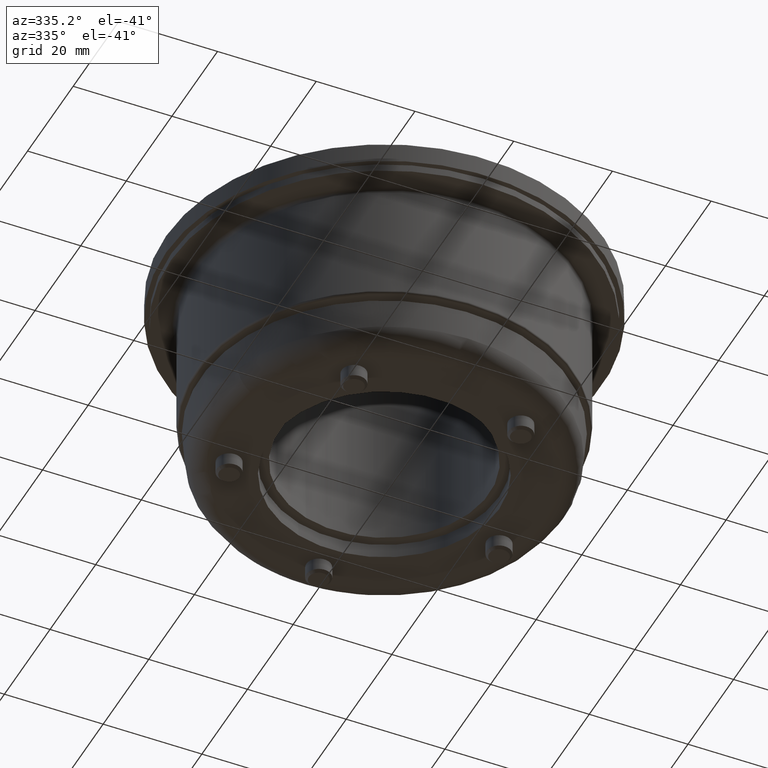
[diagram: clean part render]
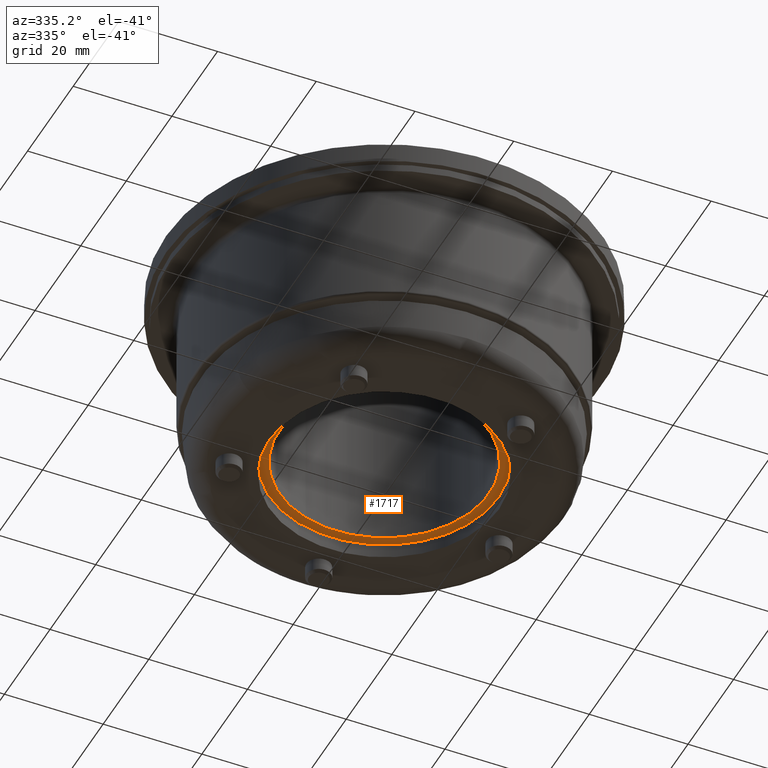
[diagram: same view with one face highlighted and labeled with its STEP entity id]
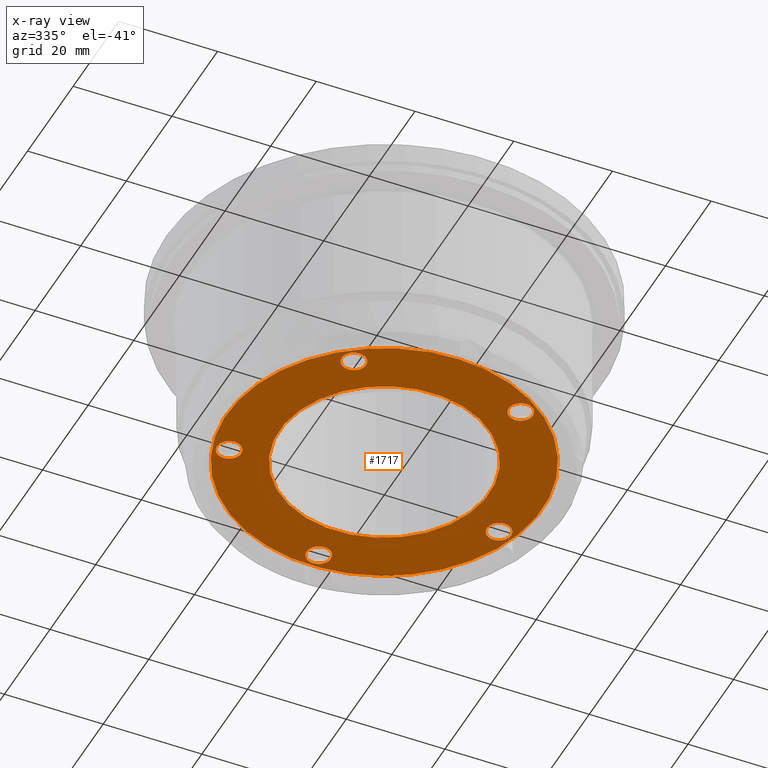
[diagram: x-ray of the same camera — body ghosted, the highlighted face saturated]
A machine part, auxiliary view. The second image highlights one B-rep face of the part: STEP entity #1717.
The next image is the same camera in x-ray: the body ghosted, the highlighted face saturated — about 0% of this face is hidden behind the body in this view.
In plain terms, the highlighted planar face has unit normal (0, -0, -1).
Its self-contained STEP definition (entity closure, byte-faithful):
#273=FACE_BOUND('',#468,.T.);
#274=FACE_BOUND('',#469,.T.);
#275=FACE_BOUND('',#470,.T.);
#276=FACE_BOUND('',#471,.T.);
#277=FACE_BOUND('',#472,.T.);
#278=FACE_BOUND('',#473,.T.);
#328=PLANE('',#1996);
#376=FACE_OUTER_BOUND('',#467,.T.);
#467=EDGE_LOOP('',(#1352,#1353));
#468=EDGE_LOOP('',(#1354));
#469=EDGE_LOOP('',(#1355));
#470=EDGE_LOOP('',(#1356));
#471=EDGE_LOOP('',(#1357));
#472=EDGE_LOOP('',(#1358));
#473=EDGE_LOOP('',(#1359));
#629=CIRCLE('',#1957,2.45);
#630=CIRCLE('',#1959,2.45);
#631=CIRCLE('',#1961,2.45);
#632=CIRCLE('',#1963,2.45);
#643=CIRCLE('',#1978,2.45);
#653=CIRCLE('',#1993,31.9518495990035);
#655=CIRCLE('',#1995,31.9518495990035);
#656=CIRCLE('',#1997,21.25);
#800=VERTEX_POINT('',#2916);
#801=VERTEX_POINT('',#2920);
#802=VERTEX_POINT('',#2924);
#803=VERTEX_POINT('',#2928);
#814=VERTEX_POINT('',#2958);
#822=VERTEX_POINT('',#2983);
#823=VERTEX_POINT('',#2984);
#824=VERTEX_POINT('',#2989);
#992=EDGE_CURVE('',#800,#800,#629,.T.);
#994=EDGE_CURVE('',#801,#801,#630,.T.);
#996=EDGE_CURVE('',#802,#802,#631,.T.);
#998=EDGE_CURVE('',#803,#803,#632,.T.);
#1013=EDGE_CURVE('',#814,#814,#643,.T.);
#1025=EDGE_CURVE('',#822,#823,#653,.T.);
#1027=EDGE_CURVE('',#823,#822,#655,.T.);
#1028=EDGE_CURVE('',#824,#824,#656,.T.);
#1352=ORIENTED_EDGE('',*,*,#1025,.F.);
#1353=ORIENTED_EDGE('',*,*,#1027,.F.);
#1354=ORIENTED_EDGE('',*,*,#1013,.T.);
#1355=ORIENTED_EDGE('',*,*,#994,.T.);
#1356=ORIENTED_EDGE('',*,*,#996,.T.);
#1357=ORIENTED_EDGE('',*,*,#998,.T.);
#1358=ORIENTED_EDGE('',*,*,#992,.T.);
#1359=ORIENTED_EDGE('',*,*,#1028,.T.);
#1717=ADVANCED_FACE('',(#376,#273,#274,#275,#276,#277,#278),#328,.T.);
#1957=AXIS2_PLACEMENT_3D('',#2917,#2313,#2314);
#1959=AXIS2_PLACEMENT_3D('',#2921,#2318,#2319);
#1961=AXIS2_PLACEMENT_3D('',#2925,#2323,#2324);
#1963=AXIS2_PLACEMENT_3D('',#2929,#2328,#2329);
#1978=AXIS2_PLACEMENT_3D('',#2959,#2362,#2363);
#1993=AXIS2_PLACEMENT_3D('',#2985,#2394,#2395);
#1995=AXIS2_PLACEMENT_3D('',#2987,#2398,#2399);
#1996=AXIS2_PLACEMENT_3D('',#2988,#2400,#2401);
#1997=AXIS2_PLACEMENT_3D('',#2990,#2402,#2403);
#2313=DIRECTION('center_axis',(0.,0.,1.));
#2314=DIRECTION('ref_axis',(-1.,0.,0.));
#2318=DIRECTION('center_axis',(0.,0.,1.));
#2319=DIRECTION('ref_axis',(-1.,0.,0.));
#2323=DIRECTION('center_axis',(0.,0.,1.));
#2324=DIRECTION('ref_axis',(-1.,0.,0.));
#2328=DIRECTION('center_axis',(0.,0.,1.));
#2329=DIRECTION('ref_axis',(-1.,0.,0.));
#2362=DIRECTION('center_axis',(0.,0.,1.));
#2363=DIRECTION('ref_axis',(-1.,0.,0.));
#2394=DIRECTION('center_axis',(0.,0.,1.));
#2395=DIRECTION('ref_axis',(1.22464679914735E-16,-1.,0.));
#2398=DIRECTION('center_axis',(0.,0.,1.));
#2399=DIRECTION('ref_axis',(1.22464679914735E-16,-1.,0.));
#2400=DIRECTION('center_axis',(0.,0.,-1.));
#2401=DIRECTION('ref_axis',(-1.,0.,0.));
#2402=DIRECTION('center_axis',(0.,0.,1.));
#2403=DIRECTION('ref_axis',(-1.,0.,0.));
#2916=CARTESIAN_POINT('',(-24.8928748434857,-8.88423858827975,0.));
#2917=CARTESIAN_POINT('Origin',(-27.3428748434857,-8.88423858827975,0.));
#2920=CARTESIAN_POINT('',(-14.4488260034086,23.2592385882797,0.));
#2921=CARTESIAN_POINT('Origin',(-16.8988260034086,23.2592385882797,0.));
#2924=CARTESIAN_POINT('',(19.3488260034086,23.2592385882797,0.));
#2925=CARTESIAN_POINT('Origin',(16.8988260034086,23.2592385882797,0.));
#2928=CARTESIAN_POINT('',(29.7928748434857,-8.88423858827973,0.));
#2929=CARTESIAN_POINT('Origin',(27.3428748434857,-8.88423858827973,0.));
#2958=CARTESIAN_POINT('',(2.45000000000001,-28.75,0.));
#2959=CARTESIAN_POINT('Origin',(1.27675647831893E-14,-28.75,0.));
#2983=CARTESIAN_POINT('',(-7.82594606765146E-15,31.9518495990035,0.));
#2984=CARTESIAN_POINT('',(31.9518495990035,-3.91297303382573E-15,0.));
#2985=CARTESIAN_POINT('Origin',(0.,0.,0.));
#2987=CARTESIAN_POINT('Origin',(0.,0.,0.));
#2988=CARTESIAN_POINT('Origin',(-5.55111512312578E-16,5.55111512312578E-16,
0.));
#2989=CARTESIAN_POINT('',(21.25,3.1574859605007E-15,0.));
#2990=CARTESIAN_POINT('Origin',(-5.55111512312578E-16,5.55111512312578E-16,
0.));